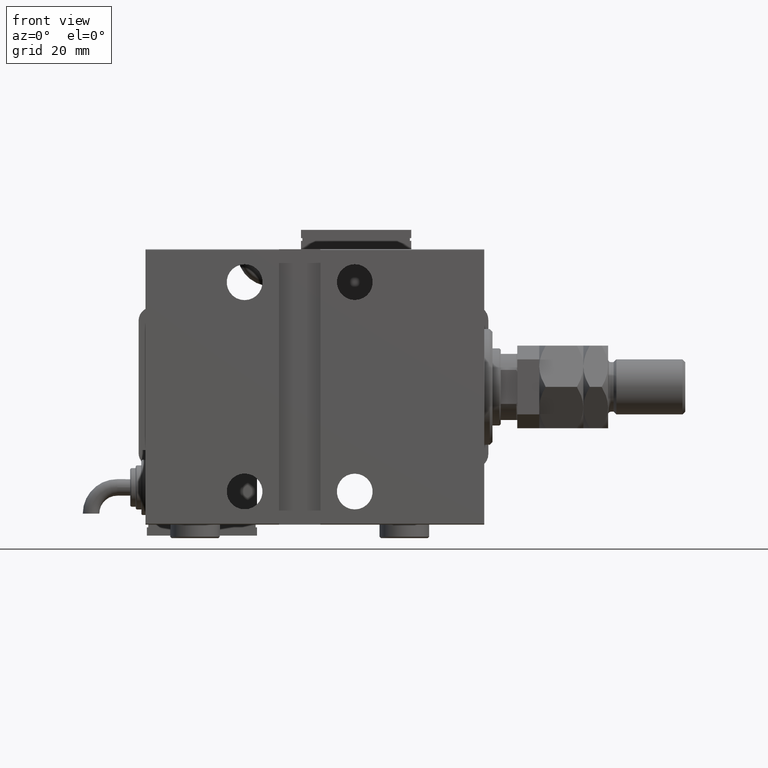
[diagram: clean part render]
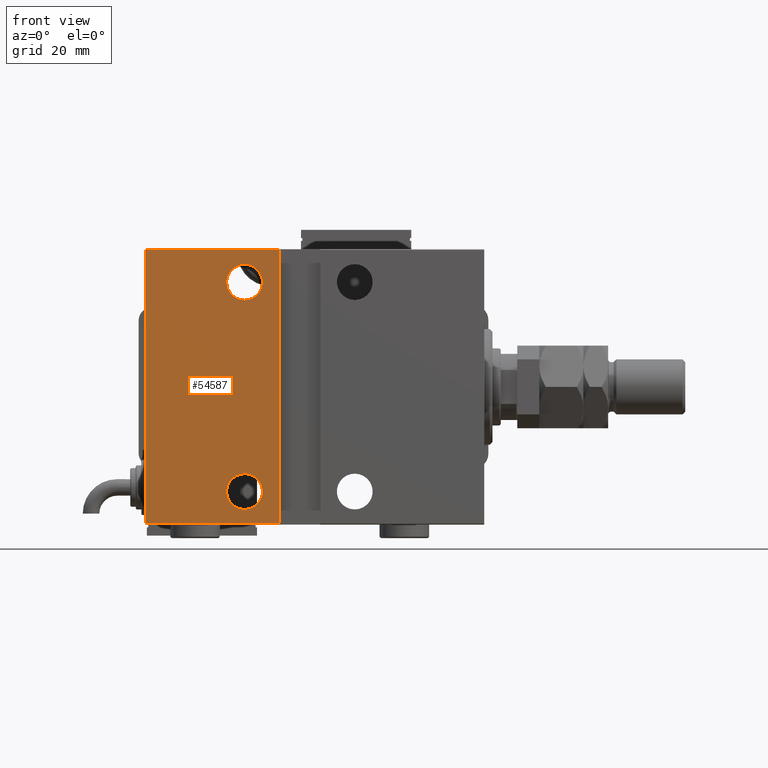
[diagram: same view with one face highlighted and labeled with its STEP entity id]
A machine part, front view. The second image highlights one B-rep face of the part: STEP entity #54587.
In plain terms, the highlighted planar face has unit normal (-0, 1, -0).
Its self-contained STEP definition (entity closure, byte-faithful):
#74 = EDGE_CURVE ( 'NONE', #15971, #4069, #55170, .T. ) ;
#3254 = AXIS2_PLACEMENT_3D ( 'NONE', #60473, #16806, #17728 ) ;
#4069 = VERTEX_POINT ( 'NONE', #11808 ) ;
#4651 = VECTOR ( 'NONE', #30420, 1000.000000000000000 ) ;
#5437 = VERTEX_POINT ( 'NONE', #15834 ) ;
#8353 = CARTESIAN_POINT ( 'NONE',  ( 87.00000000000002842, 37.50000000000000711, -38.00000000000000000 ) ) ;
#8473 = LINE ( 'NONE', #41894, #30334 ) ;
#8789 = DIRECTION ( 'NONE',  ( 0.000000000000000000, -1.000000000000000000, -1.387778780781445182E-16 ) ) ;
#9037 = CARTESIAN_POINT ( 'NONE',  ( 123.0000000000000000, 37.50000000000000711, -50.00000000000000711 ) ) ;
#9431 = AXIS2_PLACEMENT_3D ( 'NONE', #8353, #47038, #13671 ) ;
#10203 = VERTEX_POINT ( 'NONE', #21603 ) ;
#10224 = CIRCLE ( 'NONE', #3254, 6.499999999999999112 ) ;
#10751 = EDGE_LOOP ( 'NONE', ( #61236, #41017 ) ) ;
#11256 = EDGE_CURVE ( 'NONE', #15239, #44020, #8473, .T. ) ;
#11808 = CARTESIAN_POINT ( 'NONE',  ( 87.00000000000002842, 37.50000000000000711, -31.50000000000000000 ) ) ;
#13054 = CARTESIAN_POINT ( 'NONE',  ( 74.50000000000001421, 37.50000000000000711, -49.99999999999991473 ) ) ;
#13671 = DIRECTION ( 'NONE',  ( 0.000000000000000000, 0.000000000000000000, -1.000000000000000000 ) ) ;
#15239 = VERTEX_POINT ( 'NONE', #58013 ) ;
#15547 = EDGE_CURVE ( 'NONE', #15239, #10203, #55808, .T. ) ;
#15834 = CARTESIAN_POINT ( 'NONE',  ( 123.0000000000000000, 37.50000000000000711, -49.70000000000003126 ) ) ;
#15969 = EDGE_CURVE ( 'NONE', #4069, #15971, #36370, .T. ) ;
#15971 = VERTEX_POINT ( 'NONE', #37089 ) ;
#16806 = DIRECTION ( 'NONE',  ( 0.000000000000000000, -1.000000000000000000, -1.387778780781445182E-16 ) ) ;
#16940 = ORIENTED_EDGE ( 'NONE', *, *, #21707, .T. ) ;
#17300 = AXIS2_PLACEMENT_3D ( 'NONE', #35316, #20954, #26256 ) ;
#17728 = DIRECTION ( 'NONE',  ( 0.000000000000000000, 0.000000000000000000, -1.000000000000000000 ) ) ;
#18407 = PLANE ( 'NONE',  #59530 ) ;
#18472 = DIRECTION ( 'NONE',  ( 0.000000000000000000, 0.000000000000000000, -1.000000000000000000 ) ) ;
#20954 = DIRECTION ( 'NONE',  ( 0.000000000000000000, -1.000000000000000000, -1.387778780781445182E-16 ) ) ;
#21243 = EDGE_LOOP ( 'NONE', ( #37594, #16940, #24021, #30623 ) ) ;
#21603 = CARTESIAN_POINT ( 'NONE',  ( 74.50000000000001421, 37.50000000000000711, -49.70000000000003126 ) ) ;
#21707 = EDGE_CURVE ( 'NONE', #5437, #10203, #50386, .T. ) ;
#23089 = FACE_BOUND ( 'NONE', #48746, .T. ) ;
#24021 = ORIENTED_EDGE ( 'NONE', *, *, #15547, .F. ) ;
#26256 = DIRECTION ( 'NONE',  ( 0.000000000000000000, 0.000000000000000000, -1.000000000000000000 ) ) ;
#26994 = EDGE_CURVE ( 'NONE', #5437, #44020, #35849, .T. ) ;
#30334 = VECTOR ( 'NONE', #42192, 1000.000000000000000 ) ;
#30420 = DIRECTION ( 'NONE',  ( -1.000000000000000000, 0.000000000000000000, 0.000000000000000000 ) ) ;
#30623 = ORIENTED_EDGE ( 'NONE', *, *, #11256, .T. ) ;
#30827 = VECTOR ( 'NONE', #49251, 1000.000000000000000 ) ;
#32099 = DIRECTION ( 'NONE',  ( -2.775557561562893816E-16, 1.387778780781446908E-16, -1.000000000000000000 ) ) ;
#32554 = CIRCLE ( 'NONE', #42514, 6.499999999999999112 ) ;
#32780 = DIRECTION ( 'NONE',  ( 0.000000000000000000, -1.000000000000000000, -1.387778780781445182E-16 ) ) ;
#34350 = VECTOR ( 'NONE', #32099, 1000.000000000000000 ) ;
#35316 = CARTESIAN_POINT ( 'NONE',  ( 87.00000000000002842, 37.50000000000000711, -38.00000000000000000 ) ) ;
#35849 = LINE ( 'NONE', #49560, #30827 ) ;
#36370 = CIRCLE ( 'NONE', #9431, 6.499999999999999112 ) ;
#37089 = CARTESIAN_POINT ( 'NONE',  ( 87.00000000000002842, 37.50000000000000711, -44.50000000000000000 ) ) ;
#37334 = ORIENTED_EDGE ( 'NONE', *, *, #39314, .T. ) ;
#37594 = ORIENTED_EDGE ( 'NONE', *, *, #26994, .F. ) ;
#38181 = ORIENTED_EDGE ( 'NONE', *, *, #52980, .T. ) ;
#39314 = EDGE_CURVE ( 'NONE', #42963, #43825, #10224, .T. ) ;
#40626 = CARTESIAN_POINT ( 'NONE',  ( 87.00000000000001421, 37.49999999999999289, 31.50000000000000000 ) ) ;
#41017 = ORIENTED_EDGE ( 'NONE', *, *, #74, .T. ) ;
#41894 = CARTESIAN_POINT ( 'NONE',  ( 123.0000000000000000, 37.49999999999999289, 49.70000000000003126 ) ) ;
#42192 = DIRECTION ( 'NONE',  ( 1.000000000000000000, 0.000000000000000000, 0.000000000000000000 ) ) ;
#42514 = AXIS2_PLACEMENT_3D ( 'NONE', #50937, #8789, #18472 ) ;
#42963 = VERTEX_POINT ( 'NONE', #57303 ) ;
#43825 = VERTEX_POINT ( 'NONE', #40626 ) ;
#44020 = VERTEX_POINT ( 'NONE', #58958 ) ;
#47038 = DIRECTION ( 'NONE',  ( 0.000000000000000000, -1.000000000000000000, -1.387778780781445182E-16 ) ) ;
#48746 = EDGE_LOOP ( 'NONE', ( #37334, #38181 ) ) ;
#49251 = DIRECTION ( 'NONE',  ( 0.000000000000000000, -1.387778780781445182E-16, 1.000000000000000000 ) ) ;
#49560 = CARTESIAN_POINT ( 'NONE',  ( 123.0000000000000000, 37.50000000000000711, -50.00000000000000711 ) ) ;
#49770 = CARTESIAN_POINT ( 'NONE',  ( 123.0000000000000000, 37.50000000000000711, -49.70000000000003126 ) ) ;
#50386 = LINE ( 'NONE', #49770, #4651 ) ;
#50937 = CARTESIAN_POINT ( 'NONE',  ( 87.00000000000001421, 37.49999999999999289, 38.00000000000000000 ) ) ;
#51184 = DIRECTION ( 'NONE',  ( 0.000000000000000000, 1.387778780781445182E-16, -1.000000000000000000 ) ) ;
#52980 = EDGE_CURVE ( 'NONE', #43825, #42963, #32554, .T. ) ;
#54587 = ADVANCED_FACE ( 'NONE', ( #55867, #23089, #61453 ), #18407, .F. ) ;
#55170 = CIRCLE ( 'NONE', #17300, 6.499999999999999112 ) ;
#55808 = LINE ( 'NONE', #13054, #34350 ) ;
#55867 = FACE_BOUND ( 'NONE', #10751, .T. ) ;
#57303 = CARTESIAN_POINT ( 'NONE',  ( 87.00000000000001421, 37.49999999999999289, 44.50000000000000000 ) ) ;
#58013 = CARTESIAN_POINT ( 'NONE',  ( 74.50000000000004263, 37.49999999999999289, 49.70000000000000284 ) ) ;
#58958 = CARTESIAN_POINT ( 'NONE',  ( 123.0000000000000000, 37.49999999999999289, 49.70000000000003126 ) ) ;
#59530 = AXIS2_PLACEMENT_3D ( 'NONE', #9037, #32780, #51184 ) ;
#60473 = CARTESIAN_POINT ( 'NONE',  ( 87.00000000000001421, 37.49999999999999289, 38.00000000000000000 ) ) ;
#61236 = ORIENTED_EDGE ( 'NONE', *, *, #15969, .T. ) ;
#61453 = FACE_OUTER_BOUND ( 'NONE', #21243, .T. ) ;